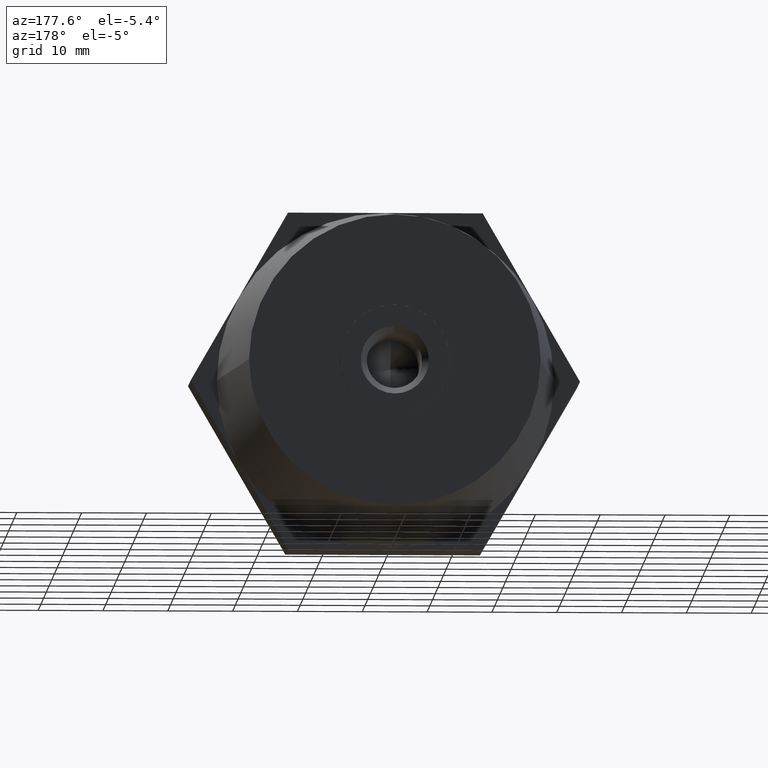
[diagram: clean part render]
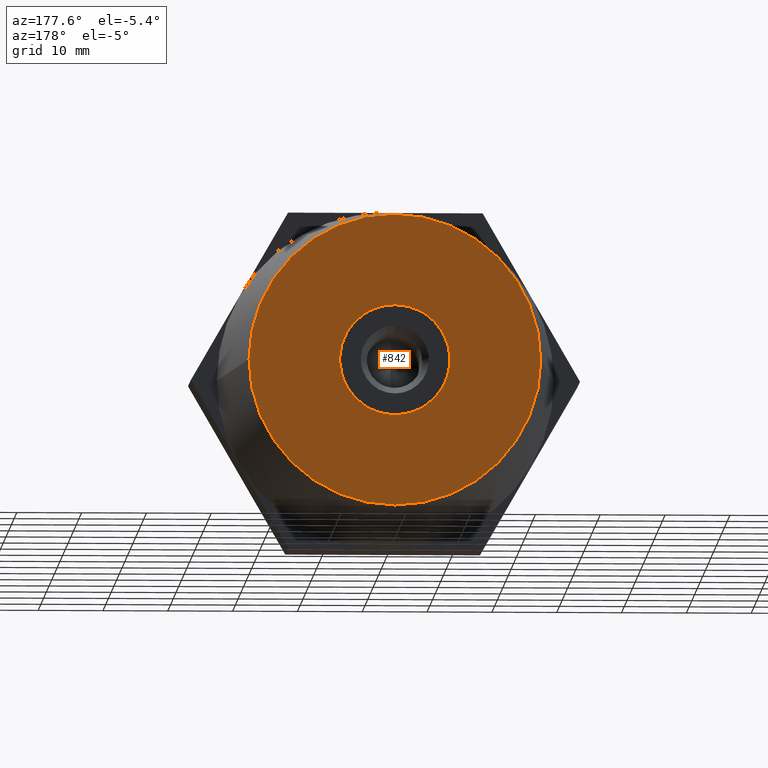
[diagram: same view with one face highlighted and labeled with its STEP entity id]
A machine part, auxiliary view. The second image highlights one B-rep face of the part: STEP entity #842.
In plain terms, the highlighted planar face has unit normal (-0, 1, 0).
Its self-contained STEP definition (entity closure, byte-faithful):
#2 = CARTESIAN_POINT ( 'NONE',  ( -8.500000000000000000, 40.00000000000000000, -0.4124318125458785200 ) ) ;
#141 = VERTEX_POINT ( 'NONE', #2828 ) ;
#165 = ORIENTED_EDGE ( 'NONE', *, *, #1541, .T. ) ;
#179 = ORIENTED_EDGE ( 'NONE', *, *, #3888, .T. ) ;
#217 = AXIS2_PLACEMENT_3D ( 'NONE', #1821, #641, #1566 ) ;
#259 = CARTESIAN_POINT ( 'NONE',  ( 4.607176426993540900, 40.00000000000000000, 7.155000025894819900 ) ) ;
#279 = VERTEX_POINT ( 'NONE', #1062 ) ;
#350 = CARTESIAN_POINT ( 'NONE',  ( -1.042174426074394000E-015, 40.00000000000000000, 0.0000000000000000000 ) ) ;
#364 = VECTOR ( 'NONE', #2902, 1000.000000000000000 ) ;
#385 = CARTESIAN_POINT ( 'NONE',  ( -22.50000000000000000, 40.00000000000000000, 0.0000000000000000000 ) ) ;
#405 = CARTESIAN_POINT ( 'NONE',  ( -8.500000000000000000, 40.00000000000000000, 0.4124318125458780200 ) ) ;
#416 = EDGE_CURVE ( 'NONE', #1195, #3926, #1072, .T. ) ;
#471 = EDGE_CURVE ( 'NONE', #3762, #1320, #497, .T. ) ;
#481 = DIRECTION ( 'NONE',  ( -1.224646799147352000E-016, 1.000000000000000000, 0.0000000000000000000 ) ) ;
#497 = LINE ( 'NONE', #500, #3047 ) ;
#500 = CARTESIAN_POINT ( 'NONE',  ( 8.500000000000000000, 40.00000000000000000, -1.095805942608280000E-014 ) ) ;
#532 = DIRECTION ( 'NONE',  ( 3.534857879381550100E-016, 4.328952387425414700E-032, 1.000000000000000000 ) ) ;
#573 = AXIS2_PLACEMENT_3D ( 'NONE', #3580, #481, #786 ) ;
#578 = DIRECTION ( 'NONE',  ( 1.224646799147352000E-016, -1.000000000000000000, -0.0000000000000000000 ) ) ;
#616 = DIRECTION ( 'NONE',  ( -1.000000000000000000, 0.0000000000000000000, 8.881784197001252300E-016 ) ) ;
#617 = CARTESIAN_POINT ( 'NONE',  ( -4.607176426993570200, 40.00000000000000000, -7.155000025894809200 ) ) ;
#637 = AXIS2_PLACEMENT_3D ( 'NONE', #2107, #2405, #1761 ) ;
#641 = DIRECTION ( 'NONE',  ( 1.224646799147352000E-016, -1.000000000000000000, -0.0000000000000000000 ) ) ;
#652 = DIRECTION ( 'NONE',  ( 1.224646799147352000E-016, -1.000000000000000000, -0.0000000000000000000 ) ) ;
#668 = PLANE ( 'NONE',  #3452 ) ;
#670 = EDGE_CURVE ( 'NONE', #3048, #141, #970, .T. ) ;
#722 = CARTESIAN_POINT ( 'NONE',  ( 3.892823573006375200, 40.00000000000000000, -7.567431838440679600 ) ) ;
#786 = DIRECTION ( 'NONE',  ( -1.000000000000000000, 0.0000000000000000000, 0.0000000000000000000 ) ) ;
#832 = AXIS2_PLACEMENT_3D ( 'NONE', #3243, #1721, #1400 ) ;
#842 = ADVANCED_FACE ( 'NONE', ( #3123, #2835 ), #668, .T. ) ;
#860 = DIRECTION ( 'NONE',  ( -1.000000000000000000, 0.0000000000000000000, 0.0000000000000000000 ) ) ;
#866 = DIRECTION ( 'NONE',  ( -1.000000000000000000, 0.0000000000000000000, 0.0000000000000000000 ) ) ;
#896 = DIRECTION ( 'NONE',  ( -1.000000000000000000, 0.0000000000000000000, 0.0000000000000000000 ) ) ;
#923 = CARTESIAN_POINT ( 'NONE',  ( -3.892823573006440000, 40.00000000000000000, -7.567431838440649400 ) ) ;
#937 = ORIENTED_EDGE ( 'NONE', *, *, #670, .T. ) ;
#950 = VERTEX_POINT ( 'NONE', #722 ) ;
#970 = CIRCLE ( 'NONE', #2839, 22.50000000000000000 ) ;
#985 = CARTESIAN_POINT ( 'NONE',  ( -21.12500000000000000, 40.00000000000000000, -2.381569860407205300 ) ) ;
#1062 = CARTESIAN_POINT ( 'NONE',  ( 3.851859888774471700E-031, 40.00000000000000000, -8.509999999999999800 ) ) ;
#1072 = LINE ( 'NONE', #2614, #3414 ) ;
#1085 = EDGE_CURVE ( 'NONE', #1930, #2061, #3164, .T. ) ;
#1087 = AXIS2_PLACEMENT_3D ( 'NONE', #350, #652, #616 ) ;
#1115 = EDGE_CURVE ( 'NONE', #1224, #3762, #3118, .T. ) ;
#1146 = CARTESIAN_POINT ( 'NONE',  ( -22.50000000000000000, 40.00000000000000000, 2.969768487932332100E-015 ) ) ;
#1161 = CARTESIAN_POINT ( 'NONE',  ( -1.042174426074394000E-015, 40.00000000000000000, 0.0000000000000000000 ) ) ;
#1187 = AXIS2_PLACEMENT_3D ( 'NONE', #1161, #578, #860 ) ;
#1195 = VERTEX_POINT ( 'NONE', #617 ) ;
#1220 = ORIENTED_EDGE ( 'NONE', *, *, #471, .T. ) ;
#1224 = VERTEX_POINT ( 'NONE', #3141 ) ;
#1234 = ORIENTED_EDGE ( 'NONE', *, *, #2878, .T. ) ;
#1248 = CARTESIAN_POINT ( 'NONE',  ( -12.62500000000000000, 40.00000000000000000, 17.10400172474265200 ) ) ;
#1261 = EDGE_CURVE ( 'NONE', #2061, #2430, #1968, .T. ) ;
#1281 = DIRECTION ( 'NONE',  ( -0.8660254037844387100, -1.060575238724905700E-016, -0.4999999999999998900 ) ) ;
#1320 = VERTEX_POINT ( 'NONE', #3128 ) ;
#1378 = ORIENTED_EDGE ( 'NONE', *, *, #3960, .T. ) ;
#1400 = DIRECTION ( 'NONE',  ( -1.000000000000000000, 0.0000000000000000000, 0.0000000000000000000 ) ) ;
#1486 = DIRECTION ( 'NONE',  ( 1.224646799147352000E-016, -1.000000000000000000, -0.0000000000000000000 ) ) ;
#1541 = EDGE_CURVE ( 'NONE', #3540, #2801, #3761, .T. ) ;
#1563 = DIRECTION ( 'NONE',  ( -1.000000000000000000, 0.0000000000000000000, -2.664535259100375700E-015 ) ) ;
#1566 = DIRECTION ( 'NONE',  ( -1.000000000000000000, 0.0000000000000000000, 0.0000000000000000000 ) ) ;
#1714 = CARTESIAN_POINT ( 'NONE',  ( 8.500000000000000000, 40.00000000000000000, -0.4124318125458485400 ) ) ;
#1721 = DIRECTION ( 'NONE',  ( 1.224646799147352000E-016, -1.000000000000000000, -0.0000000000000000000 ) ) ;
#1724 = CARTESIAN_POINT ( 'NONE',  ( 3.892823573006464900, 40.00000000000000000, 7.567431838440639600 ) ) ;
#1761 = DIRECTION ( 'NONE',  ( -1.000000000000000000, 0.0000000000000000000, 0.0000000000000000000 ) ) ;
#1821 = CARTESIAN_POINT ( 'NONE',  ( -1.042174426074394000E-015, 40.00000000000000000, 0.0000000000000000000 ) ) ;
#1914 = CIRCLE ( 'NONE', #832, 8.509999999999999800 ) ;
#1930 = VERTEX_POINT ( 'NONE', #1724 ) ;
#1968 = LINE ( 'NONE', #985, #2992 ) ;
#2061 = VERTEX_POINT ( 'NONE', #3521 ) ;
#2088 = LINE ( 'NONE', #1248, #364 ) ;
#2107 = CARTESIAN_POINT ( 'NONE',  ( -1.042174426074394000E-015, 40.00000000000000000, 0.0000000000000000000 ) ) ;
#2137 = CIRCLE ( 'NONE', #573, 22.50000000000000000 ) ;
#2170 = CARTESIAN_POINT ( 'NONE',  ( -1.042174426074394000E-015, 40.00000000000000000, 0.0000000000000000000 ) ) ;
#2200 = CIRCLE ( 'NONE', #2206, 8.509999999999999800 ) ;
#2206 = AXIS2_PLACEMENT_3D ( 'NONE', #3019, #1486, #866 ) ;
#2218 = CIRCLE ( 'NONE', #1087, 8.509999999999999800 ) ;
#2405 = DIRECTION ( 'NONE',  ( 1.224646799147352000E-016, -1.000000000000000000, -0.0000000000000000000 ) ) ;
#2430 = VERTEX_POINT ( 'NONE', #3745 ) ;
#2476 = DIRECTION ( 'NONE',  ( -1.224646799147352000E-016, 1.000000000000000000, 0.0000000000000000000 ) ) ;
#2513 = CIRCLE ( 'NONE', #217, 8.509999999999999800 ) ;
#2516 = DIRECTION ( 'NONE',  ( -1.000000000000000000, -1.224646799147352000E-016, 0.0000000000000000000 ) ) ;
#2517 = ORIENTED_EDGE ( 'NONE', *, *, #3481, .T. ) ;
#2614 = CARTESIAN_POINT ( 'NONE',  ( -21.12500000000000000, 40.00000000000000000, 2.381569860407209700 ) ) ;
#2616 = DIRECTION ( 'NONE',  ( 0.8660254037844387100, 1.060575238724905700E-016, 0.4999999999999998900 ) ) ;
#2623 = AXIS2_PLACEMENT_3D ( 'NONE', #2170, #3402, #1563 ) ;
#2625 = ORIENTED_EDGE ( 'NONE', *, *, #1085, .T. ) ;
#2641 = VECTOR ( 'NONE', #2616, 1000.000000000000000 ) ;
#2731 = DIRECTION ( 'NONE',  ( -1.224646799147352000E-016, 1.000000000000000000, 0.0000000000000000000 ) ) ;
#2754 = CARTESIAN_POINT ( 'NONE',  ( -3.374459510989179900E-031, 40.00000000000000000, 0.0000000000000000000 ) ) ;
#2801 = VERTEX_POINT ( 'NONE', #2 ) ;
#2804 = ORIENTED_EDGE ( 'NONE', *, *, #3062, .T. ) ;
#2828 = CARTESIAN_POINT ( 'NONE',  ( 22.50000000000000000, 40.00000000000000000, 0.0000000000000000000 ) ) ;
#2835 = FACE_BOUND ( 'NONE', #3803, .T. ) ;
#2839 = AXIS2_PLACEMENT_3D ( 'NONE', #2754, #2731, #896 ) ;
#2878 = EDGE_CURVE ( 'NONE', #950, #1224, #3158, .T. ) ;
#2898 = CARTESIAN_POINT ( 'NONE',  ( -8.500000000000000000, 40.00000000000000000, 0.0000000000000000000 ) ) ;
#2902 = DIRECTION ( 'NONE',  ( -0.8660254037844387100, -1.060575238724905700E-016, 0.4999999999999998900 ) ) ;
#2913 = DIRECTION ( 'NONE',  ( 0.0000000000000000000, 0.0000000000000000000, -1.000000000000000000 ) ) ;
#2917 = CARTESIAN_POINT ( 'NONE',  ( -12.62500000000000000, 40.00000000000000000, -17.10400172474265200 ) ) ;
#2935 = VECTOR ( 'NONE', #2913, 1000.000000000000000 ) ;
#2992 = VECTOR ( 'NONE', #1281, 1000.000000000000000 ) ;
#3019 = CARTESIAN_POINT ( 'NONE',  ( -1.042174426074394000E-015, 40.00000000000000000, 0.0000000000000000000 ) ) ;
#3047 = VECTOR ( 'NONE', #532, 1000.000000000000000 ) ;
#3048 = VERTEX_POINT ( 'NONE', #1146 ) ;
#3062 = EDGE_CURVE ( 'NONE', #2801, #1195, #2200, .T. ) ;
#3118 = CIRCLE ( 'NONE', #1187, 8.509999999999999800 ) ;
#3123 = FACE_OUTER_BOUND ( 'NONE', #3889, .T. ) ;
#3128 = CARTESIAN_POINT ( 'NONE',  ( 8.500000000000000000, 40.00000000000000000, 0.4124318125458665300 ) ) ;
#3141 = CARTESIAN_POINT ( 'NONE',  ( 4.607176426993610200, 40.00000000000000000, -7.155000025894770100 ) ) ;
#3145 = ORIENTED_EDGE ( 'NONE', *, *, #1115, .T. ) ;
#3158 = LINE ( 'NONE', #2917, #2641 ) ;
#3164 = CIRCLE ( 'NONE', #637, 8.509999999999999800 ) ;
#3230 = CIRCLE ( 'NONE', #2623, 8.509999999999999800 ) ;
#3238 = EDGE_CURVE ( 'NONE', #3926, #279, #1914, .T. ) ;
#3243 = CARTESIAN_POINT ( 'NONE',  ( -1.042174426074394000E-015, 40.00000000000000000, 0.0000000000000000000 ) ) ;
#3295 = VERTEX_POINT ( 'NONE', #259 ) ;
#3402 = DIRECTION ( 'NONE',  ( 1.224646799147352000E-016, -1.000000000000000000, -0.0000000000000000000 ) ) ;
#3414 = VECTOR ( 'NONE', #3922, 1000.000000000000000 ) ;
#3416 = ORIENTED_EDGE ( 'NONE', *, *, #1261, .T. ) ;
#3452 = AXIS2_PLACEMENT_3D ( 'NONE', #385, #2476, #2516 ) ;
#3481 = EDGE_CURVE ( 'NONE', #1320, #3295, #2513, .T. ) ;
#3521 = CARTESIAN_POINT ( 'NONE',  ( -3.892823573006404900, 40.00000000000000000, 7.567431838440669800 ) ) ;
#3540 = VERTEX_POINT ( 'NONE', #405 ) ;
#3580 = CARTESIAN_POINT ( 'NONE',  ( -3.374459510989179900E-031, 40.00000000000000000, 0.0000000000000000000 ) ) ;
#3722 = ORIENTED_EDGE ( 'NONE', *, *, #416, .T. ) ;
#3745 = CARTESIAN_POINT ( 'NONE',  ( -4.607176426993589800, 40.00000000000000000, 7.155000025894789700 ) ) ;
#3761 = LINE ( 'NONE', #2898, #2935 ) ;
#3762 = VERTEX_POINT ( 'NONE', #1714 ) ;
#3794 = EDGE_CURVE ( 'NONE', #141, #3048, #2137, .T. ) ;
#3803 = EDGE_LOOP ( 'NONE', ( #1234, #3145, #1220, #2517, #1378, #2625, #3416, #179, #165, #2804, #3722, #3880, #3939 ) ) ;
#3880 = ORIENTED_EDGE ( 'NONE', *, *, #3238, .T. ) ;
#3888 = EDGE_CURVE ( 'NONE', #2430, #3540, #3230, .T. ) ;
#3889 = EDGE_LOOP ( 'NONE', ( #3909, #937 ) ) ;
#3909 = ORIENTED_EDGE ( 'NONE', *, *, #3794, .T. ) ;
#3916 = EDGE_CURVE ( 'NONE', #279, #950, #2218, .T. ) ;
#3922 = DIRECTION ( 'NONE',  ( 0.8660254037844387100, 1.060575238724905700E-016, -0.4999999999999998900 ) ) ;
#3926 = VERTEX_POINT ( 'NONE', #923 ) ;
#3939 = ORIENTED_EDGE ( 'NONE', *, *, #3916, .T. ) ;
#3960 = EDGE_CURVE ( 'NONE', #3295, #1930, #2088, .T. ) ;